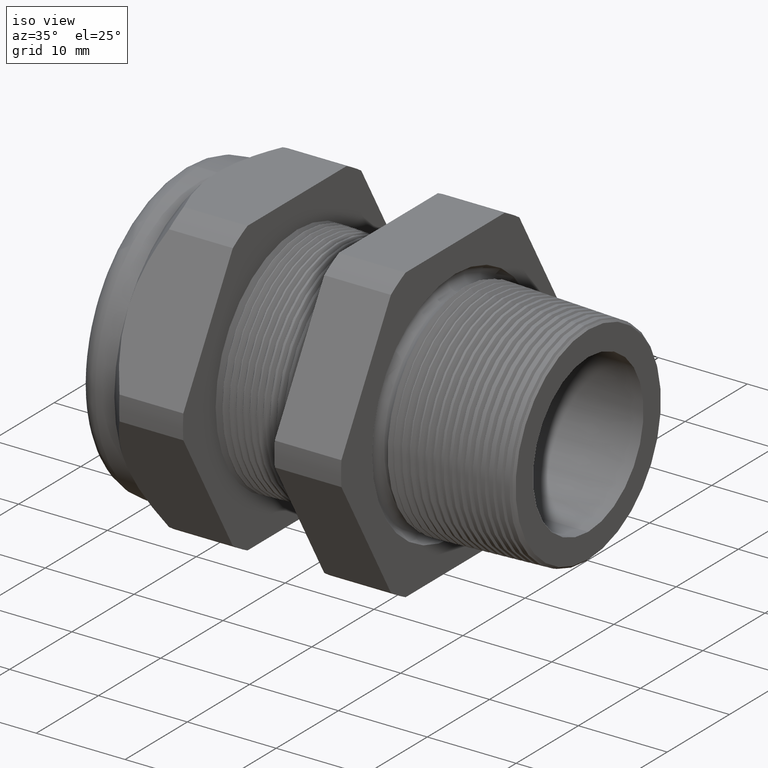
[diagram: clean part render]
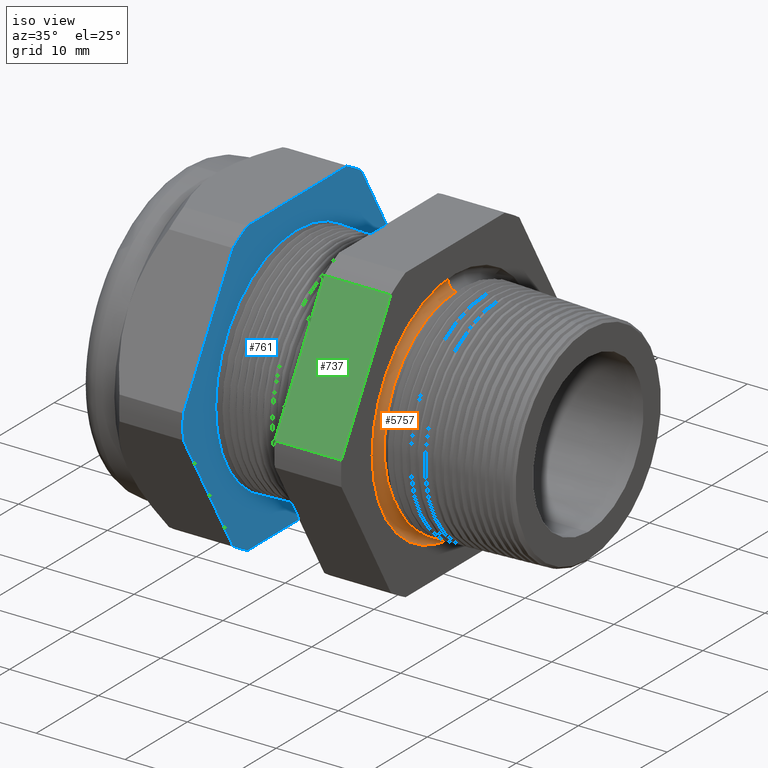
[diagram: same view with three faces highlighted in distinct colors, each labeled with its STEP entity id]
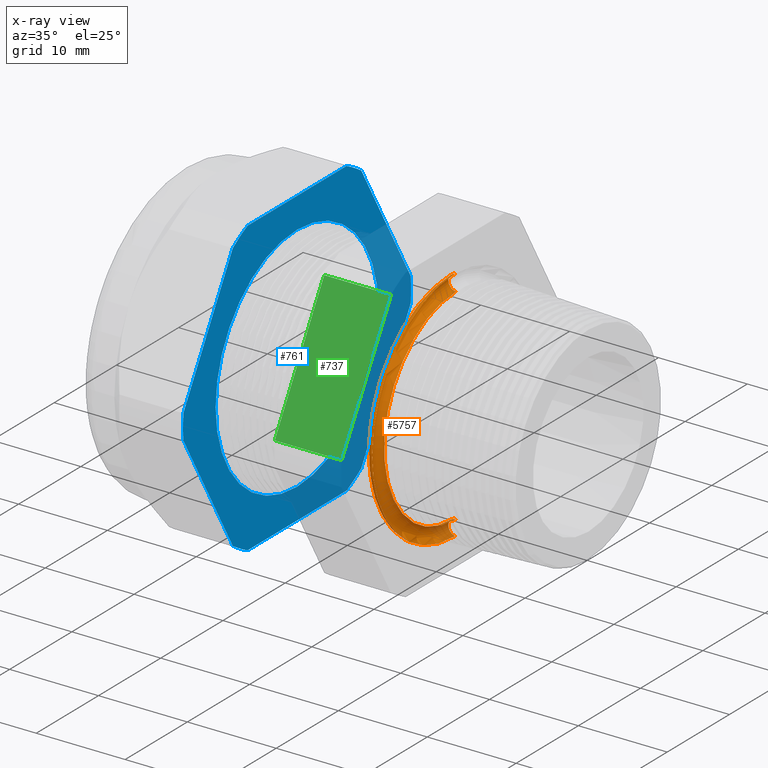
[diagram: x-ray of the same camera — body ghosted, the three highlighted faces saturated]
A machine part, iso view with three faces highlighted in distinct colors.
The next image is the same camera in x-ray (body ghosted, the three faces saturated) — at least one of them is partly hidden behind the body in this view.
Their STEP definitions:

[orange] entity #5757 — the highlighted toroidal blend (fillet) surface has major radius 12.4598 mm and minor (blend) radius 0.889 mm.
#225 = EDGE_CURVE ( 'NONE', #5950, #5955, #1809, .T. ) ;
#314 = ORIENTED_EDGE ( 'NONE', *, *, #315, .T. ) ;
#315 = EDGE_CURVE ( 'NONE', #5950, #316, #1925, .T. ) ;
#316 = VERTEX_POINT ( 'NONE', #1920 ) ;
#317 = ORIENTED_EDGE ( 'NONE', *, *, #318, .T. ) ;
#318 = EDGE_CURVE ( 'NONE', #316, #5985, #1919, .T. ) ;
#1805 = DIRECTION ( 'NONE',  ( 0.0000000000000000000, 0.0000000000000000000, -1.000000000000000000 ) ) ;
#1806 = DIRECTION ( 'NONE',  ( 1.000000000000000000, 0.0000000000000000000, 0.0000000000000000000 ) ) ;
#1807 = CARTESIAN_POINT ( 'NONE',  ( -0.3049999999999999400, 0.0000000000000000000, 0.0000000000000000000 ) ) ;
#1808 = AXIS2_PLACEMENT_3D ( 'NONE', #1807, #1806, #1805 ) ;
#1809 = CIRCLE ( 'NONE', #1808, 0.4555444626882251800 ) ;
#1915 = DIRECTION ( 'NONE',  ( 0.0000000000000000000, 0.0000000000000000000, -1.000000000000000000 ) ) ;
#1916 = DIRECTION ( 'NONE',  ( 1.000000000000000000, 0.0000000000000000000, 0.0000000000000000000 ) ) ;
#1917 = CARTESIAN_POINT ( 'NONE',  ( -0.3100000000000000000, 0.0000000000000000000, 0.0000000000000000000 ) ) ;
#1918 = AXIS2_PLACEMENT_3D ( 'NONE', #1917, #1916, #1915 ) ;
#1919 = CIRCLE ( 'NONE', #1918, 0.5251854788396026500 ) ;
#1920 = CARTESIAN_POINT ( 'NONE',  ( -0.3100000000000000000, 6.431667156195893800E-017, 0.5251854788396026500 ) ) ;
#1921 = DIRECTION ( 'NONE',  ( 0.0000000000000000000, 1.224646799147352700E-016, 1.000000000000000000 ) ) ;
#1922 = DIRECTION ( 'NONE',  ( 0.0000000000000000000, 1.000000000000000000, -1.224646799147353200E-016 ) ) ;
#1923 = CARTESIAN_POINT ( 'NONE',  ( -0.3049999999999999400, 6.007437060705931600E-017, 0.4905444626882251600 ) ) ;
#1924 = AXIS2_PLACEMENT_3D ( 'NONE', #1923, #1922, #1921 ) ;
#1925 = CIRCLE ( 'NONE', #1924, 0.03499999999999996900 ) ;
#4823 = EDGE_LOOP ( 'NONE', ( #5481, #314, #317, #5970 ) ) ;
#4909 = CARTESIAN_POINT ( 'NONE',  ( -0.3049999999999999400, 0.0000000000000000000, 0.0000000000000000000 ) ) ;
#4915 = FACE_OUTER_BOUND ( 'NONE', #4823, .T. ) ;
#4969 = DIRECTION ( 'NONE',  ( 0.0000000000000000000, 0.0000000000000000000, -1.000000000000000000 ) ) ;
#4970 = DIRECTION ( 'NONE',  ( 1.000000000000000000, 0.0000000000000000000, 0.0000000000000000000 ) ) ;
#4971 = AXIS2_PLACEMENT_3D ( 'NONE', #4909, #4970, #4969 ) ;
#4972 = TOROIDAL_SURFACE ( 'NONE', #4971, 0.4905444626882251600, 0.03499999999999994800 ) ;
#5017 = CARTESIAN_POINT ( 'NONE',  ( -0.3049999999999999400, 0.0000000000000000000, -0.4555444626882251800 ) ) ;
#5025 = CARTESIAN_POINT ( 'NONE',  ( -0.3049999999999999400, 5.578810681004358900E-017, 0.4555444626882251800 ) ) ;
#5046 = DIRECTION ( 'NONE',  ( 0.0000000000000000000, 0.0000000000000000000, -1.000000000000000000 ) ) ;
#5047 = DIRECTION ( 'NONE',  ( 0.0000000000000000000, -1.000000000000000000, 0.0000000000000000000 ) ) ;
#5048 = CARTESIAN_POINT ( 'NONE',  ( -0.3049999999999999400, 0.0000000000000000000, -0.4905444626882251600 ) ) ;
#5049 = AXIS2_PLACEMENT_3D ( 'NONE', #5048, #5047, #5046 ) ;
#5050 = CIRCLE ( 'NONE', #5049, 0.03499999999999996900 ) ;
#5079 = CARTESIAN_POINT ( 'NONE',  ( -0.3100000000000000000, 0.0000000000000000000, -0.5251854788396026500 ) ) ;
#5481 = ORIENTED_EDGE ( 'NONE', *, *, #225, .F. ) ;
#5757 = ADVANCED_FACE ( 'NONE', ( #4915 ), #4972, .F. ) ;
#5950 = VERTEX_POINT ( 'NONE', #5025 ) ;
#5955 = VERTEX_POINT ( 'NONE', #5017 ) ;
#5970 = ORIENTED_EDGE ( 'NONE', *, *, #5972, .F. ) ;
#5972 = EDGE_CURVE ( 'NONE', #5955, #5985, #5050, .T. ) ;
#5985 = VERTEX_POINT ( 'NONE', #5079 ) ;

[blue] entity #761 — the highlighted planar face has unit normal (1, 0, 0).
#430 = VERTEX_POINT ( 'NONE', #2134 ) ;
#433 = VERTEX_POINT ( 'NONE', #2187 ) ;
#435 = EDGE_CURVE ( 'NONE', #453, #433, #2186, .T. ) ;
#453 = VERTEX_POINT ( 'NONE', #2198 ) ;
#471 = EDGE_CURVE ( 'NONE', #430, #496, #2287, .T. ) ;
#479 = VERTEX_POINT ( 'NONE', #2267 ) ;
#481 = EDGE_CURVE ( 'NONE', #496, #479, #2265, .T. ) ;
#485 = EDGE_CURVE ( 'NONE', #501, #430, #2259, .T. ) ;
#496 = VERTEX_POINT ( 'NONE', #2338 ) ;
#501 = VERTEX_POINT ( 'NONE', #2333 ) ;
#503 = EDGE_CURVE ( 'NONE', #433, #501, #2332, .T. ) ;
#515 = VERTEX_POINT ( 'NONE', #2363 ) ;
#517 = EDGE_CURVE ( 'NONE', #529, #515, #2362, .T. ) ;
#529 = VERTEX_POINT ( 'NONE', #2397 ) ;
#531 = EDGE_CURVE ( 'NONE', #548, #529, #2396, .T. ) ;
#548 = VERTEX_POINT ( 'NONE', #2411 ) ;
#550 = EDGE_CURVE ( 'NONE', #479, #548, #2410, .T. ) ;
#562 = EDGE_CURVE ( 'NONE', #577, #453, #2460, .T. ) ;
#566 = VERTEX_POINT ( 'NONE', #2494 ) ;
#568 = EDGE_CURVE ( 'NONE', #582, #566, #2493, .T. ) ;
#577 = VERTEX_POINT ( 'NONE', #2472 ) ;
#579 = EDGE_CURVE ( 'NONE', #566, #577, #2470, .T. ) ;
#582 = VERTEX_POINT ( 'NONE', #2522 ) ;
#584 = EDGE_CURVE ( 'NONE', #515, #582, #2521, .T. ) ;
#761 = ADVANCED_FACE ( 'NONE', ( #2842, #2841 ), #2840, .T. ) ;
#762 = EDGE_LOOP ( 'NONE', ( #763, #823 ) ) ;
#763 = ORIENTED_EDGE ( 'NONE', *, *, #822, .F. ) ;
#810 = ORIENTED_EDGE ( 'NONE', *, *, #531, .T. ) ;
#811 = ORIENTED_EDGE ( 'NONE', *, *, #517, .T. ) ;
#812 = ORIENTED_EDGE ( 'NONE', *, *, #584, .T. ) ;
#813 = ORIENTED_EDGE ( 'NONE', *, *, #568, .T. ) ;
#814 = ORIENTED_EDGE ( 'NONE', *, *, #579, .T. ) ;
#822 = EDGE_CURVE ( 'NONE', #3630, #3634, #2945, .T. ) ;
#823 = ORIENTED_EDGE ( 'NONE', *, *, #3631, .F. ) ;
#824 = EDGE_LOOP ( 'NONE', ( #825, #827, #828, #830, #831, #832, #833, #810, #811, #812, #813, #814 ) ) ;
#825 = ORIENTED_EDGE ( 'NONE', *, *, #562, .T. ) ;
#827 = ORIENTED_EDGE ( 'NONE', *, *, #435, .T. ) ;
#828 = ORIENTED_EDGE ( 'NONE', *, *, #503, .T. ) ;
#830 = ORIENTED_EDGE ( 'NONE', *, *, #485, .T. ) ;
#831 = ORIENTED_EDGE ( 'NONE', *, *, #471, .T. ) ;
#832 = ORIENTED_EDGE ( 'NONE', *, *, #481, .T. ) ;
#833 = ORIENTED_EDGE ( 'NONE', *, *, #550, .T. ) ;
#2134 = CARTESIAN_POINT ( 'NONE',  ( -1.010314960629921100, 0.3131489262315937900, 0.6499999999999999100 ) ) ;
#2182 = DIRECTION ( 'NONE',  ( 0.0000000000000000000, 0.0000000000000000000, -1.000000000000000000 ) ) ;
#2183 = DIRECTION ( 'NONE',  ( 1.000000000000000000, 0.0000000000000000000, 0.0000000000000000000 ) ) ;
#2184 = CARTESIAN_POINT ( 'NONE',  ( -1.010314960629921100, 0.0000000000000000000, 0.0000000000000000000 ) ) ;
#2185 = AXIS2_PLACEMENT_3D ( 'NONE', #2184, #2183, #2182 ) ;
#2186 = CIRCLE ( 'NONE', #2185, 0.7214999999999999200 ) ;
#2187 = CARTESIAN_POINT ( 'NONE',  ( -1.010314960629921100, 0.7194909755756817600, 0.05380507471562172300 ) ) ;
#2198 = CARTESIAN_POINT ( 'NONE',  ( -1.010314960629921100, 0.7194909755756818700, -0.05380507471562158400 ) ) ;
#2259 = CIRCLE ( 'NONE', #2314, 0.7215000000000000300 ) ;
#2261 = DIRECTION ( 'NONE',  ( 0.0000000000000000000, 0.0000000000000000000, -1.000000000000000000 ) ) ;
#2262 = DIRECTION ( 'NONE',  ( 1.000000000000000000, 0.0000000000000000000, 0.0000000000000000000 ) ) ;
#2263 = CARTESIAN_POINT ( 'NONE',  ( -1.010314960629921100, 0.0000000000000000000, 0.0000000000000000000 ) ) ;
#2264 = AXIS2_PLACEMENT_3D ( 'NONE', #2263, #2262, #2261 ) ;
#2265 = CIRCLE ( 'NONE', #2264, 0.7215000000000000300 ) ;
#2267 = CARTESIAN_POINT ( 'NONE',  ( -1.010314960629921100, -0.4063420493440888500, 0.5961949252843790100 ) ) ;
#2284 = DIRECTION ( 'NONE',  ( 0.0000000000000000000, -1.000000000000000000, 0.0000000000000000000 ) ) ;
#2285 = VECTOR ( 'NONE', #2284, 39.37007874015748100 ) ;
#2286 = CARTESIAN_POINT ( 'NONE',  ( -1.010314960629921100, 0.5150000000000000100, 0.6499999999999999100 ) ) ;
#2287 = LINE ( 'NONE', #2286, #2285 ) ;
#2311 = DIRECTION ( 'NONE',  ( 0.0000000000000000000, 0.0000000000000000000, -1.000000000000000000 ) ) ;
#2312 = DIRECTION ( 'NONE',  ( 1.000000000000000000, 0.0000000000000000000, 0.0000000000000000000 ) ) ;
#2313 = CARTESIAN_POINT ( 'NONE',  ( -1.010314960629921100, 0.0000000000000000000, 0.0000000000000000000 ) ) ;
#2314 = AXIS2_PLACEMENT_3D ( 'NONE', #2313, #2312, #2311 ) ;
#2329 = DIRECTION ( 'NONE',  ( 0.0000000000000000000, -0.4999999999999998300, 0.8660254037844386000 ) ) ;
#2330 = VECTOR ( 'NONE', #2329, 39.37007874015748900 ) ;
#2331 = CARTESIAN_POINT ( 'NONE',  ( -1.010314960629921100, 0.6916665124598854200, 0.1019984585255071900 ) ) ;
#2332 = LINE ( 'NONE', #2331, #2330 ) ;
#2333 = CARTESIAN_POINT ( 'NONE',  ( -1.010314960629921100, 0.4063420493440890700, 0.5961949252843787800 ) ) ;
#2338 = CARTESIAN_POINT ( 'NONE',  ( -1.010314960629921100, -0.3131489262315937400, 0.6500000000000000200 ) ) ;
#2359 = DIRECTION ( 'NONE',  ( 0.0000000000000000000, 0.5000000000000002200, -0.8660254037844384900 ) ) ;
#2360 = VECTOR ( 'NONE', #2359, 39.37007874015748900 ) ;
#2361 = CARTESIAN_POINT ( 'NONE',  ( -1.010314960629921100, -0.4341665124598849100, -0.5480015414744932000 ) ) ;
#2362 = LINE ( 'NONE', #2361, #2360 ) ;
#2363 = CARTESIAN_POINT ( 'NONE',  ( -1.010314960629921100, -0.4063420493440883500, -0.5961949252843792300 ) ) ;
#2392 = DIRECTION ( 'NONE',  ( 0.0000000000000000000, 0.0000000000000000000, -1.000000000000000000 ) ) ;
#2393 = DIRECTION ( 'NONE',  ( 1.000000000000000000, 0.0000000000000000000, 0.0000000000000000000 ) ) ;
#2394 = CARTESIAN_POINT ( 'NONE',  ( -1.010314960629921100, 0.0000000000000000000, 0.0000000000000000000 ) ) ;
#2395 = AXIS2_PLACEMENT_3D ( 'NONE', #2394, #2393, #2392 ) ;
#2396 = CIRCLE ( 'NONE', #2395, 0.7215000000000000300 ) ;
#2397 = CARTESIAN_POINT ( 'NONE',  ( -1.010314960629921100, -0.7194909755756819800, -0.05380507471562111200 ) ) ;
#2407 = DIRECTION ( 'NONE',  ( 0.0000000000000000000, -0.4999999999999995600, -0.8660254037844388200 ) ) ;
#2408 = VECTOR ( 'NONE', #2407, 39.37007874015748900 ) ;
#2409 = CARTESIAN_POINT ( 'NONE',  ( -1.010314960629921100, -0.4341665124598858600, 0.5480015414744928700 ) ) ;
#2410 = LINE ( 'NONE', #2409, #2408 ) ;
#2411 = CARTESIAN_POINT ( 'NONE',  ( -1.010314960629921100, -0.7194909755756819800, 0.05380507471562089000 ) ) ;
#2441 = DIRECTION ( 'NONE',  ( 0.0000000000000000000, 0.4999999999999998300, 0.8660254037844386000 ) ) ;
#2442 = VECTOR ( 'NONE', #2441, 39.37007874015748900 ) ;
#2449 = CARTESIAN_POINT ( 'NONE',  ( -1.010314960629921100, 0.6916665124598854200, -0.1019984585255072100 ) ) ;
#2460 = LINE ( 'NONE', #2449, #2442 ) ;
#2466 = DIRECTION ( 'NONE',  ( 0.0000000000000000000, 0.0000000000000000000, -1.000000000000000000 ) ) ;
#2467 = DIRECTION ( 'NONE',  ( 1.000000000000000000, 0.0000000000000000000, 0.0000000000000000000 ) ) ;
#2468 = CARTESIAN_POINT ( 'NONE',  ( -1.010314960629921100, 0.0000000000000000000, 0.0000000000000000000 ) ) ;
#2469 = AXIS2_PLACEMENT_3D ( 'NONE', #2468, #2467, #2466 ) ;
#2470 = CIRCLE ( 'NONE', #2469, 0.7215000000000000300 ) ;
#2472 = CARTESIAN_POINT ( 'NONE',  ( -1.010314960629921100, 0.4063420493440892400, -0.5961949252843785600 ) ) ;
#2490 = DIRECTION ( 'NONE',  ( 0.0000000000000000000, 1.000000000000000000, 0.0000000000000000000 ) ) ;
#2491 = VECTOR ( 'NONE', #2490, 39.37007874015748100 ) ;
#2492 = CARTESIAN_POINT ( 'NONE',  ( -1.010314960629921100, 0.5150000000000000100, -0.6500000000000001300 ) ) ;
#2493 = LINE ( 'NONE', #2492, #2491 ) ;
#2494 = CARTESIAN_POINT ( 'NONE',  ( -1.010314960629921100, 0.3131489262315934100, -0.6500000000000001300 ) ) ;
#2517 = DIRECTION ( 'NONE',  ( 0.0000000000000000000, 0.0000000000000000000, -1.000000000000000000 ) ) ;
#2518 = DIRECTION ( 'NONE',  ( 1.000000000000000000, 0.0000000000000000000, 0.0000000000000000000 ) ) ;
#2519 = CARTESIAN_POINT ( 'NONE',  ( -1.010314960629921100, 0.0000000000000000000, 0.0000000000000000000 ) ) ;
#2520 = AXIS2_PLACEMENT_3D ( 'NONE', #2519, #2518, #2517 ) ;
#2521 = CIRCLE ( 'NONE', #2520, 0.7215000000000000300 ) ;
#2522 = CARTESIAN_POINT ( 'NONE',  ( -1.010314960629921100, -0.3131489262315934100, -0.6500000000000001300 ) ) ;
#2836 = DIRECTION ( 'NONE',  ( 0.0000000000000000000, 0.0000000000000000000, -1.000000000000000000 ) ) ;
#2837 = DIRECTION ( 'NONE',  ( 1.000000000000000000, 0.0000000000000000000, 0.0000000000000000000 ) ) ;
#2838 = CARTESIAN_POINT ( 'NONE',  ( -1.010314960629921100, 0.5150000000000000100, 0.0000000000000000000 ) ) ;
#2839 = AXIS2_PLACEMENT_3D ( 'NONE', #2838, #2837, #2836 ) ;
#2840 = PLANE ( 'NONE',  #2839 ) ;
#2841 = FACE_OUTER_BOUND ( 'NONE', #824, .T. ) ;
#2842 = FACE_BOUND ( 'NONE', #762, .T. ) ;
#2941 = DIRECTION ( 'NONE',  ( 0.0000000000000000000, 0.0000000000000000000, -1.000000000000000000 ) ) ;
#2942 = DIRECTION ( 'NONE',  ( 1.000000000000000000, 0.0000000000000000000, 0.0000000000000000000 ) ) ;
#2943 = CARTESIAN_POINT ( 'NONE',  ( -1.010314960629921100, 0.0000000000000000000, 0.0000000000000000000 ) ) ;
#2944 = AXIS2_PLACEMENT_3D ( 'NONE', #2943, #2942, #2941 ) ;
#2945 = CIRCLE ( 'NONE', #2944, 0.5150000000000000100 ) ;
#3630 = VERTEX_POINT ( 'NONE', #4653 ) ;
#3631 = EDGE_CURVE ( 'NONE', #3634, #3630, #4715, .T. ) ;
#3634 = VERTEX_POINT ( 'NONE', #4710 ) ;
#4652 = CARTESIAN_POINT ( 'NONE',  ( -1.010314960629921100, 0.0000000000000000000, 0.0000000000000000000 ) ) ;
#4653 = CARTESIAN_POINT ( 'NONE',  ( -1.010314960629921100, 0.0000000000000000000, 0.5150000000000000100 ) ) ;
#4710 = CARTESIAN_POINT ( 'NONE',  ( -1.010314960629921100, 6.306931015608869800E-017, -0.5150000000000000100 ) ) ;
#4712 = DIRECTION ( 'NONE',  ( 0.0000000000000000000, 0.0000000000000000000, -1.000000000000000000 ) ) ;
#4713 = DIRECTION ( 'NONE',  ( 1.000000000000000000, 0.0000000000000000000, 0.0000000000000000000 ) ) ;
#4714 = AXIS2_PLACEMENT_3D ( 'NONE', #4652, #4713, #4712 ) ;
#4715 = CIRCLE ( 'NONE', #4714, 0.5150000000000000100 ) ;

[green] entity #737 — the highlighted planar face has unit normal (0, -0.866, 0.5).
#616 = VERTEX_POINT ( 'NONE', #2575 ) ;
#618 = EDGE_CURVE ( 'NONE', #616, #619, #2574, .T. ) ;
#619 = VERTEX_POINT ( 'NONE', #2570 ) ;
#716 = EDGE_CURVE ( 'NONE', #616, #717, #2782, .T. ) ;
#717 = VERTEX_POINT ( 'NONE', #2778 ) ;
#718 = ORIENTED_EDGE ( 'NONE', *, *, #719, .F. ) ;
#719 = EDGE_CURVE ( 'NONE', #734, #717, #2777, .T. ) ;
#733 = EDGE_CURVE ( 'NONE', #619, #734, #2758, .T. ) ;
#734 = VERTEX_POINT ( 'NONE', #2820 ) ;
#737 = ADVANCED_FACE ( 'NONE', ( #2814 ), #2812, .T. ) ;
#738 = EDGE_LOOP ( 'NONE', ( #792, #793, #794, #718 ) ) ;
#792 = ORIENTED_EDGE ( 'NONE', *, *, #733, .F. ) ;
#793 = ORIENTED_EDGE ( 'NONE', *, *, #618, .F. ) ;
#794 = ORIENTED_EDGE ( 'NONE', *, *, #716, .T. ) ;
#2570 = CARTESIAN_POINT ( 'NONE',  ( -0.3100000000000000000, -0.7194909755756819800, 0.05380507471562089000 ) ) ;
#2571 = DIRECTION ( 'NONE',  ( 0.0000000000000000000, -0.4999999999999995600, -0.8660254037844388200 ) ) ;
#2572 = VECTOR ( 'NONE', #2571, 39.37007874015748900 ) ;
#2573 = CARTESIAN_POINT ( 'NONE',  ( -0.3100000000000000000, -0.2379165124598860700, 0.8879165124598849000 ) ) ;
#2574 = LINE ( 'NONE', #2573, #2572 ) ;
#2575 = CARTESIAN_POINT ( 'NONE',  ( -0.3100000000000000000, -0.4063420493440888500, 0.5961949252843790100 ) ) ;
#2758 = LINE ( 'NONE', #2823, #2822 ) ;
#2774 = DIRECTION ( 'NONE',  ( 0.0000000000000000000, 0.4999999999999995600, 0.8660254037844388200 ) ) ;
#2775 = VECTOR ( 'NONE', #2774, 39.37007874015748900 ) ;
#2776 = CARTESIAN_POINT ( 'NONE',  ( -0.6052755905511810800, -0.2379165124598860700, 0.8879165124598847900 ) ) ;
#2777 = LINE ( 'NONE', #2776, #2775 ) ;
#2778 = CARTESIAN_POINT ( 'NONE',  ( -0.6052755905511810800, -0.4063420493440888500, 0.5961949252843790100 ) ) ;
#2779 = DIRECTION ( 'NONE',  ( -1.000000000000000000, 0.0000000000000000000, 0.0000000000000000000 ) ) ;
#2780 = VECTOR ( 'NONE', #2779, 39.37007874015748100 ) ;
#2781 = CARTESIAN_POINT ( 'NONE',  ( 0.2800000000000000300, -0.4063420493440888500, 0.5961949252843790100 ) ) ;
#2782 = LINE ( 'NONE', #2781, #2780 ) ;
#2808 = DIRECTION ( 'NONE',  ( 0.0000000000000000000, -0.4999999999999995600, -0.8660254037844388200 ) ) ;
#2809 = DIRECTION ( 'NONE',  ( 0.0000000000000000000, -0.8660254037844389300, 0.4999999999999996100 ) ) ;
#2810 = CARTESIAN_POINT ( 'NONE',  ( 0.2800000000000000300, -0.7194909755756819800, 0.05380507471562077900 ) ) ;
#2811 = AXIS2_PLACEMENT_3D ( 'NONE', #2810, #2809, #2808 ) ;
#2812 = PLANE ( 'NONE',  #2811 ) ;
#2814 = FACE_OUTER_BOUND ( 'NONE', #738, .T. ) ;
#2820 = CARTESIAN_POINT ( 'NONE',  ( -0.6052755905511810800, -0.7194909755756819800, 0.05380507471562089000 ) ) ;
#2821 = DIRECTION ( 'NONE',  ( -1.000000000000000000, 0.0000000000000000000, 0.0000000000000000000 ) ) ;
#2822 = VECTOR ( 'NONE', #2821, 39.37007874015748100 ) ;
#2823 = CARTESIAN_POINT ( 'NONE',  ( 0.2800000000000000300, -0.7194909755756819800, 0.05380507471562089000 ) ) ;